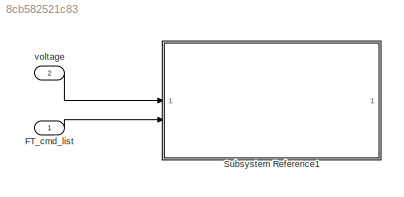
MODEL slx_8cb582521c83
KIND model
CONFIG AbsTol = auto
CONFIG EnableMultiTasking = off
CONFIG FixedStep = dt_sim
CONFIG MaxStep = auto
CONFIG MinStep = auto
CONFIG RelTol = 1e-3
CONFIG SampleTimeConstraint = Unconstrained
CONFIG SolverName = FixedStepDiscrete
CONFIG StartTime = 0.0
CONFIG StopTime = tspan
BLOCK [Inport] FT_cmd_list
BLOCK [SubSystem] Subsystem Reference1
  ReferencedSubsystem = force_to_pwm
BLOCK [Inport] voltage
  Port = 2
LINE FT_cmd_list:1 -> Subsystem Reference1:2
LINE voltage:1 -> Subsystem Reference1:1
